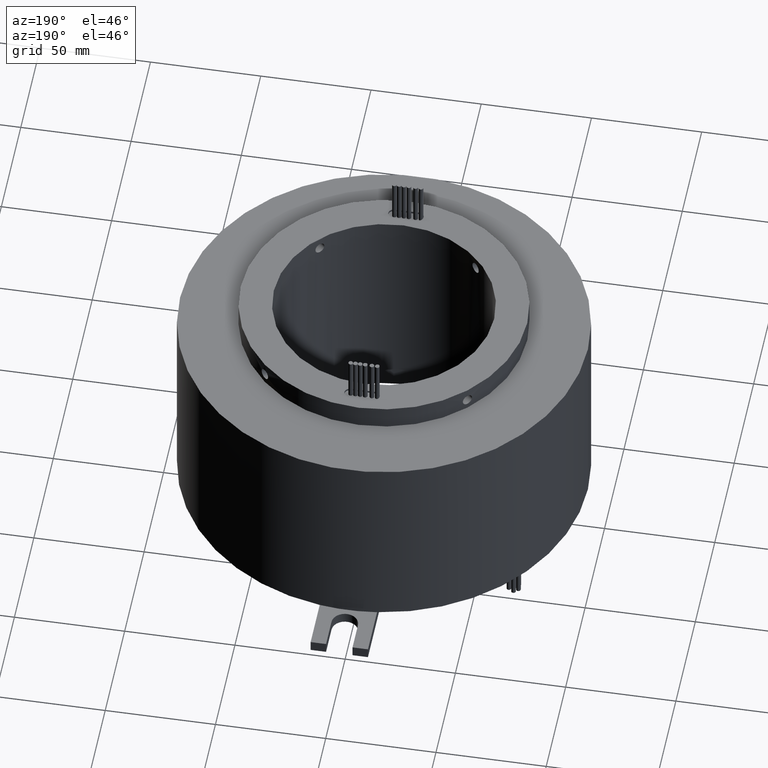
[diagram: clean part render]
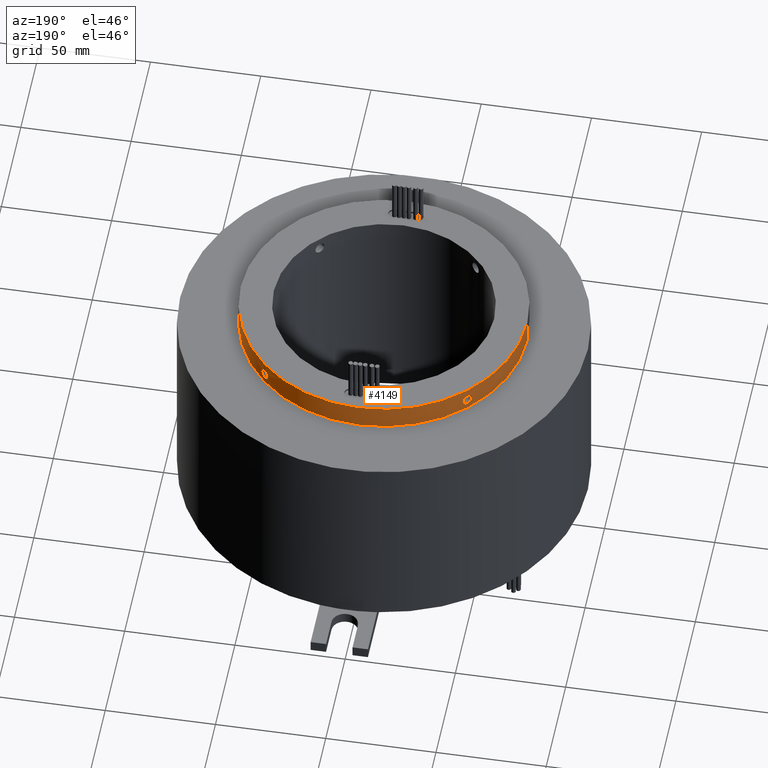
[diagram: same view with one face highlighted and labeled with its STEP entity id]
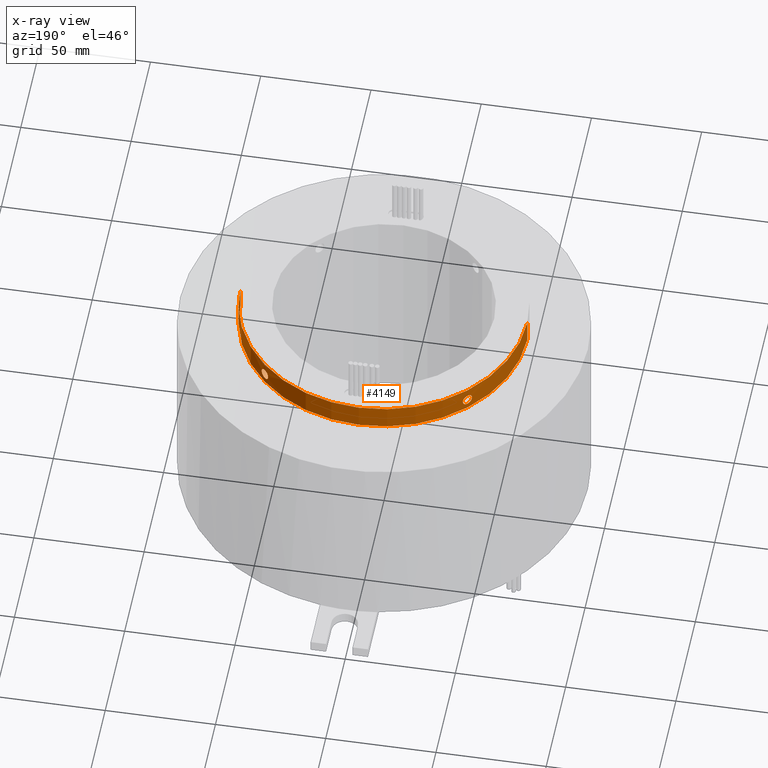
[diagram: x-ray of the same camera — body ghosted, the highlighted face saturated]
A machine part, auxiliary view. The second image highlights one B-rep face of the part: STEP entity #4149.
The next image is the same camera in x-ray: the body ghosted, the highlighted face saturated — about 0% of this face is hidden behind the body in this view.
In plain terms, the highlighted cylindrical surface (partial cylindrical patch) has radius 65 mm, axis along (-0, -0, 1).
Its self-contained STEP definition (entity closure, byte-faithful):
#104 = CARTESIAN_POINT ( 'NONE',  ( 46.07999204829227600, 45.84388199766633000, -3.500138038327434800 ) ) ;
#111 = CARTESIAN_POINT ( 'NONE',  ( -47.47069103543148600, 44.40204649447926500, -7.252360309801808600 ) ) ;
#113 = VERTEX_POINT ( 'NONE', #1805 ) ;
#116 = CARTESIAN_POINT ( 'NONE',  ( 44.20897853959981200, 47.65062269902254100, -5.341538258810599500 ) ) ;
#122 = CARTESIAN_POINT ( 'NONE',  ( -45.50124398056639300, 46.41834232062086600, -8.419956692820902000 ) ) ;
#140 = CARTESIAN_POINT ( 'NONE',  ( -44.16016572421846600, 47.69569963015072000, -6.163171243454490500 ) ) ;
#179 = DIRECTION ( 'NONE',  ( -0.0000000000000000000, -0.0000000000000000000, 1.000000000000000000 ) ) ;
#181 = CARTESIAN_POINT ( 'NONE',  ( -65.00000000000000000, 7.960204194457797300E-015, 0.0000000000000000000 ) ) ;
#210 = CARTESIAN_POINT ( 'NONE',  ( -45.50102671124737700, 46.41855338487375300, -3.580161844710348300 ) ) ;
#228 = CARTESIAN_POINT ( 'NONE',  ( -47.46956576708286900, 44.40325080319352200, -4.744693392472177300 ) ) ;
#235 = B_SPLINE_CURVE_WITH_KNOTS ( 'NONE', 3,
 ( #3615, #1668, #2831, #496, #3225, #881, #3633, #1298, #4033, #1682, #4439, #2073, #4829, #2461, #104, #2851, #508, #3241, #906, #3648, #1311, #4050, #1704, #4452, #2084, #4851, #2475, #116, #2869, #530 ),
 .UNSPECIFIED., .F., .F.,
 ( 4, 2, 2, 2, 2, 2, 2, 2, 2, 2, 2, 2, 2, 2, 4 ),
 ( 0.007816862583405146200, 0.008305305601618804100, 0.008793748619832461900, 0.009770634656259769000, 0.01025907767447342300, 0.01074752069268707600, 0.01123596371090072700, 0.01172440672911438000, 0.01221284974732803200, 0.01270129276554168500, 0.01318973578375533600, 0.01367817880196899000, 0.01416662182018264300, 0.01465506483839629600, 0.01563195087482360800 ),
 .UNSPECIFIED. ) ;
#299 = CARTESIAN_POINT ( 'NONE',  ( 44.17207540943285000, 47.68468060354278700, -6.327630498714695400 ) ) ;
#316 = CARTESIAN_POINT ( 'NONE',  ( 45.73084434046003800, 46.19216296432736600, -8.484082171939674000 ) ) ;
#333 = CARTESIAN_POINT ( 'NONE',  ( 47.52335674216848100, 44.34562555328687900, -7.108106359963710700 ) ) ;
#370 = DIRECTION ( 'NONE',  ( 1.000000000000000000, 0.0000000000000000000, 0.0000000000000000000 ) ) ;
#376 = VERTEX_POINT ( 'NONE', #4385 ) ;
#411 = CARTESIAN_POINT ( 'NONE',  ( -65.00000000000000000, 7.960204194457797300E-015, 43.85958022877165500 ) ) ;
#496 = CARTESIAN_POINT ( 'NONE',  ( 47.64146030417070000, 44.21868703357350900, -5.352470072581452200 ) ) ;
#508 = CARTESIAN_POINT ( 'NONE',  ( 45.73107917413582900, 46.19192476950722400, -3.515985911344599000 ) ) ;
#521 = CARTESIAN_POINT ( 'NONE',  ( -47.27406240823314900, 44.61139246279392300, -7.652783468253103300 ) ) ;
#530 = CARTESIAN_POINT ( 'NONE',  ( 44.16016572421815300, 47.69569963015104000, -6.000000000000000000 ) ) ;
#545 = CARTESIAN_POINT ( 'NONE',  ( -45.17259827340448900, 46.73819934398493800, -8.247504164300817600 ) ) ;
#619 = CARTESIAN_POINT ( 'NONE',  ( -45.84388199766648600, 46.07999204829209800, -3.500138038327434300 ) ) ;
#632 = CARTESIAN_POINT ( 'NONE',  ( -47.65062269902269800, 44.20897853959964900, -5.341538258810601300 ) ) ;
#681 = CARTESIAN_POINT ( 'NONE',  ( 44.16016572421815300, 47.69569963015104000, -6.000000000000000000 ) ) ;
#694 = CARTESIAN_POINT ( 'NONE',  ( 44.25395825891427400, 47.60872947220727300, -6.805985060338418400 ) ) ;
#719 = CARTESIAN_POINT ( 'NONE',  ( 46.07662570307977000, 45.84725899677446400, -8.500057831212194200 ) ) ;
#735 = CARTESIAN_POINT ( 'NONE',  ( 47.64110329690681300, 44.21907166762397900, -6.649252969355587500 ) ) ;
#759 = EDGE_LOOP ( 'NONE', ( #2209, #2008 ) ) ;
#857 = CARTESIAN_POINT ( 'NONE',  ( 44.16016572421815300, 47.69569963015104000, -6.000000000000000000 ) ) ;
#881 = CARTESIAN_POINT ( 'NONE',  ( 47.48141422801675300, 44.39066146716344000, -4.743159703425783700 ) ) ;
#901 = VERTEX_POINT ( 'NONE', #857 ) ;
#906 = CARTESIAN_POINT ( 'NONE',  ( 45.39017267962743300, 46.52692994251630400, -3.627068785985135600 ) ) ;
#917 = CARTESIAN_POINT ( 'NONE',  ( -47.02857776554562000, 44.87016334702067900, -7.986869438697850900 ) ) ;
#930 = CARTESIAN_POINT ( 'NONE',  ( -44.87151147613803900, 47.02728798534189300, -7.988178730515181200 ) ) ;
#986 = CARTESIAN_POINT ( 'NONE',  ( 65.00000000000000000, 0.0000000000000000000, 43.85958022877165500 ) ) ;
#994 = CARTESIAN_POINT ( 'NONE',  ( -44.21868703357369400, 47.64146030417053600, -5.352470072581454000 ) ) ;
#1003 = DIRECTION ( 'NONE',  ( 1.000000000000000000, 0.0000000000000000000, 0.0000000000000000000 ) ) ;
#1010 = CARTESIAN_POINT ( 'NONE',  ( -46.19192476950740200, 45.73107917413567200, -3.515985911344600400 ) ) ;
#1028 = DIRECTION ( 'NONE',  ( -0.0000000000000000000, -0.0000000000000000000, 1.000000000000000000 ) ) ;
#1033 = CARTESIAN_POINT ( 'NONE',  ( -47.69569963015118900, 44.16016572421798300, -6.000000000000000000 ) ) ;
#1099 = CARTESIAN_POINT ( 'NONE',  ( 44.40204649447942100, 47.47069103543132900, -7.252360309801807700 ) ) ;
#1115 = CARTESIAN_POINT ( 'NONE',  ( 46.41834232062102900, 45.50124398056621500, -8.419956692820900200 ) ) ;
#1129 = CARTESIAN_POINT ( 'NONE',  ( 47.69569963015087000, 44.16016572421829500, -6.163171243454490500 ) ) ;
#1183 = EDGE_CURVE ( 'NONE', #4394, #113, #2065, .T. ) ;
#1298 = CARTESIAN_POINT ( 'NONE',  ( 47.11658312939154300, 44.77768266964981300, -4.118157253113183800 ) ) ;
#1311 = CARTESIAN_POINT ( 'NONE',  ( 45.06919407177638000, 46.83787144319425300, -3.829163464615563700 ) ) ;
#1319 = CARTESIAN_POINT ( 'NONE',  ( -46.73843357647932400, 45.17235284750622500, -8.247267377098694400 ) ) ;
#1339 = CARTESIAN_POINT ( 'NONE',  ( -44.61045786286954500, 47.27494773534495900, -7.651509095637674600 ) ) ;
#1344 = VECTOR ( 'NONE', #1967, 1000.000000000000000 ) ;
#1404 = CARTESIAN_POINT ( 'NONE',  ( -44.39066146716359600, 47.48141422801660400, -4.743159703425786400 ) ) ;
#1411 = CARTESIAN_POINT ( 'NONE',  ( 65.00000000000000000, 0.0000000000000000000, 0.0000000000000000000 ) ) ;
#1425 = CARTESIAN_POINT ( 'NONE',  ( -46.52692994251646000, 45.39017267962727000, -3.627068785985138300 ) ) ;
#1433 = EDGE_CURVE ( 'NONE', #4394, #1915, #1585, .T. ) ;
#1502 = CARTESIAN_POINT ( 'NONE',  ( 44.61139246279407900, 47.27406240823298600, -7.652783468253099700 ) ) ;
#1516 = CARTESIAN_POINT ( 'NONE',  ( 46.73819934398508700, 45.17259827340431900, -8.247504164300819300 ) ) ;
#1585 = LINE ( 'NONE', #986, #4348 ) ;
#1610 = VERTEX_POINT ( 'NONE', #2268 ) ;
#1668 = CARTESIAN_POINT ( 'NONE',  ( 47.69569963015089800, 44.16016572421831700, -5.836865793582640000 ) ) ;
#1682 = CARTESIAN_POINT ( 'NONE',  ( 46.83989344400823300, 45.06709290814459500, -3.830825397124022900 ) ) ;
#1695 = CARTESIAN_POINT ( 'NONE',  ( -47.69569963015120400, 44.16016572421799000, -6.165197205766059300 ) ) ;
#1703 = B_SPLINE_CURVE_WITH_KNOTS ( 'NONE', 3,
 ( #2940, #4525, #3331, #994, #3737, #1404, #4133, #1795, #4547, #2171, #4937, #2567, #210, #2950, #619, #3355, #1010, #3750, #1425, #4157, #1807, #4559, #2194, #4953, #2581, #228, #2974, #632, #3370, #1033 ),
 .UNSPECIFIED., .F., .F.,
 ( 4, 2, 2, 2, 2, 2, 2, 2, 2, 2, 2, 2, 2, 2, 4 ),
 ( 0.007816862583405142700, 0.008305305601618795400, 0.008793748619832449800, 0.009770634656259758600, 0.01025907767447341300, 0.01074752069268706600, 0.01123596371090072000, 0.01172440672911437300, 0.01221284974732802700, 0.01270129276554168200, 0.01318973578375533600, 0.01367817880196899000, 0.01416662182018264500, 0.01465506483839629900, 0.01563195087482360100 ),
 .UNSPECIFIED. ) ;
#1704 = CARTESIAN_POINT ( 'NONE',  ( 44.77970713791242500, 47.11465979961361200, -4.115691267181317900 ) ) ;
#1719 = CARTESIAN_POINT ( 'NONE',  ( -46.41866997379251800, 45.50091341147444300, -8.419903535158653100 ) ) ;
#1724 = DIRECTION ( 'NONE',  ( -0.0000000000000000000, -0.0000000000000000000, 1.000000000000000000 ) ) ;
#1730 = CARTESIAN_POINT ( 'NONE',  ( -44.40285866452262600, 47.46993096935391800, -7.254216696553063700 ) ) ;
#1795 = CARTESIAN_POINT ( 'NONE',  ( -44.77768266964999100, 47.11658312939140100, -4.118157253113184700 ) ) ;
#1805 = CARTESIAN_POINT ( 'NONE',  ( -65.00000000000000000, 7.960204194457797300E-015, -11.00000000000000400 ) ) ;
#1807 = CARTESIAN_POINT ( 'NONE',  ( -46.83787144319442300, 45.06919407177622400, -3.829163464615566300 ) ) ;
#1842 = EDGE_CURVE ( 'NONE', #1610, #376, #4610, .T. ) ;
#1889 = CARTESIAN_POINT ( 'NONE',  ( 44.87016334702084200, 47.02857776554546400, -7.986869438697849200 ) ) ;
#1905 = CARTESIAN_POINT ( 'NONE',  ( 47.02728798534203500, 44.87151147613787600, -7.988178730515183000 ) ) ;
#1915 = VERTEX_POINT ( 'NONE', #1411 ) ;
#1967 = DIRECTION ( 'NONE',  ( -0.0000000000000000000, -0.0000000000000000000, 1.000000000000000000 ) ) ;
#2008 = ORIENTED_EDGE ( 'NONE', *, *, #2880, .T. ) ;
#2065 = CIRCLE ( 'NONE', #4364, 65.00000000000000000 ) ;
#2073 = CARTESIAN_POINT ( 'NONE',  ( 46.52968309448228700, 45.38734890897493600, -3.628434735116882000 ) ) ;
#2076 = EDGE_LOOP ( 'NONE', ( #2920, #4470 ) ) ;
#2082 = CARTESIAN_POINT ( 'NONE',  ( -47.64145854052023300, 44.21868879071839600, -6.647196251884907700 ) ) ;
#2084 = CARTESIAN_POINT ( 'NONE',  ( 44.53659027965484500, 47.34448734825273400, -4.471996258555806000 ) ) ;
#2095 = CARTESIAN_POINT ( 'NONE',  ( -46.07787977465136500, 45.84599861680192100, -8.499941852664465000 ) ) ;
#2108 = CARTESIAN_POINT ( 'NONE',  ( -44.25373741433745100, 47.60893473517981500, -6.805116717310282200 ) ) ;
#2167 = EDGE_CURVE ( 'NONE', #113, #4113, #4351, .T. ) ;
#2170 = FACE_BOUND ( 'NONE', #759, .T. ) ;
#2171 = CARTESIAN_POINT ( 'NONE',  ( -45.06709290814479400, 46.83989344400807700, -3.830825397124018900 ) ) ;
#2194 = CARTESIAN_POINT ( 'NONE',  ( -47.11465979961380400, 44.77970713791228300, -4.115691267181322400 ) ) ;
#2209 = ORIENTED_EDGE ( 'NONE', *, *, #1842, .T. ) ;
#2268 = CARTESIAN_POINT ( 'NONE',  ( -47.69569963015118900, 44.16016572421798300, -6.000000000000000000 ) ) ;
#2271 = CARTESIAN_POINT ( 'NONE',  ( 45.17235284750638200, 46.73843357647917400, -8.247267377098694400 ) ) ;
#2282 = CARTESIAN_POINT ( 'NONE',  ( 47.27494773534508700, 44.61045786286935300, -7.651509095637676300 ) ) ;
#2381 = B_SPLINE_CURVE_WITH_KNOTS ( 'NONE', 3,
 ( #681, #5019, #299, #3032, #694, #3438, #1099, #3834, #1502, #4244, #1889, #4643, #2271, #5042, #2666, #316, #3052, #719, #3450, #1115, #3862, #1516, #4259, #1905, #4666, #2282, #5055, #2690, #333, #3070, #735, #3471, #1129, #3877 ),
 .UNSPECIFIED., .F., .F.,
 ( 4, 2, 2, 2, 2, 2, 2, 2, 2, 2, 2, 2, 2, 2, 2, 2, 4 ),
 ( 0.0000000000000000000, 0.0004885539114628212000, 0.0009771078229256424100, 0.001465661734388463500, 0.001954215645851284800, 0.002442769557314105900, 0.002931323468776927000, 0.003419877380239748500, 0.003908431291702569600, 0.004396985203165391600, 0.004885539114628211800, 0.005374093026091032900, 0.005862646937553854000, 0.006351200849016676800, 0.006839754760479500500, 0.007328308671942322500, 0.007816862583405146200 ),
 .UNSPECIFIED. ) ;
#2461 = CARTESIAN_POINT ( 'NONE',  ( 46.19429463686460500, 45.72868545152557100, -3.516424283524280300 ) ) ;
#2468 = CARTESIAN_POINT ( 'NONE',  ( -47.52313167126844500, 44.34586677126545600, -7.108760903830897400 ) ) ;
#2475 = CARTESIAN_POINT ( 'NONE',  ( 44.34619579791038300, 47.52282425354419400, -4.890485192260708700 ) ) ;
#2488 = CARTESIAN_POINT ( 'NONE',  ( -45.72968957284814500, 46.19330253558751300, -8.483798822003155500 ) ) ;
#2507 = CARTESIAN_POINT ( 'NONE',  ( -44.17217664217794500, 47.68458695621927700, -6.328886830125398400 ) ) ;
#2546 = CARTESIAN_POINT ( 'NONE',  ( 47.69569963015087700, 44.16016572421829500, -6.000000000000000000 ) ) ;
#2567 = CARTESIAN_POINT ( 'NONE',  ( -45.38734890897511300, 46.52968309448212400, -3.628434735116883300 ) ) ;
#2581 = CARTESIAN_POINT ( 'NONE',  ( -47.34448734825289100, 44.53659027965467500, -4.471996258555806000 ) ) ;
#2666 = CARTESIAN_POINT ( 'NONE',  ( 45.50091341147459200, 46.41866997379236200, -8.419903535158653100 ) ) ;
#2690 = CARTESIAN_POINT ( 'NONE',  ( 47.46993096935408100, 44.40285866452246200, -7.254216696553060100 ) ) ;
#2713 = DIRECTION ( 'NONE',  ( -0.0000000000000000000, -0.0000000000000000000, 1.000000000000000000 ) ) ;
#2765 = EDGE_LOOP ( 'NONE', ( #4745, #3139, #4332, #4061 ) ) ;
#2831 = CARTESIAN_POINT ( 'NONE',  ( 47.68495195705850900, 44.17178261899801600, -5.674724672138033600 ) ) ;
#2851 = CARTESIAN_POINT ( 'NONE',  ( 45.84683095845083800, 46.07705800996701800, -3.499863692156795400 ) ) ;
#2864 = CARTESIAN_POINT ( 'NONE',  ( -47.34648643170536500, 44.53446376517442900, -7.524126066433772100 ) ) ;
#2869 = CARTESIAN_POINT ( 'NONE',  ( 44.16016572421816000, 47.69569963015104000, -5.669680582258623100 ) ) ;
#2876 = CARTESIAN_POINT ( 'NONE',  ( -45.38979120847884000, 46.52730130513864300, -8.372733384653560800 ) ) ;
#2880 = EDGE_CURVE ( 'NONE', #376, #1610, #1703, .T. ) ;
#2890 = CARTESIAN_POINT ( 'NONE',  ( -44.16016572421847300, 47.69569963015073500, -6.000000000000000000 ) ) ;
#2920 = ORIENTED_EDGE ( 'NONE', *, *, #4546, .T. ) ;
#2940 = CARTESIAN_POINT ( 'NONE',  ( -44.16016572421847300, 47.69569963015073500, -6.000000000000000000 ) ) ;
#2950 = CARTESIAN_POINT ( 'NONE',  ( -45.72868545152572800, 46.19429463686444800, -3.516424283524279400 ) ) ;
#2974 = CARTESIAN_POINT ( 'NONE',  ( -47.52282425354432900, 44.34619579791021200, -4.890485192260708700 ) ) ;
#3032 = CARTESIAN_POINT ( 'NONE',  ( 44.21868879071855900, 47.64145854052008400, -6.647196251884908600 ) ) ;
#3052 = CARTESIAN_POINT ( 'NONE',  ( 45.84599861680208500, 46.07787977465120800, -8.499941852664465000 ) ) ;
#3070 = CARTESIAN_POINT ( 'NONE',  ( 47.60893473517997200, 44.25373741433728000, -6.805116717310282200 ) ) ;
#3139 = ORIENTED_EDGE ( 'NONE', *, *, #2167, .T. ) ;
#3201 = FACE_OUTER_BOUND ( 'NONE', #2765, .T. ) ;
#3225 = CARTESIAN_POINT ( 'NONE',  ( 47.60878172976979500, 44.25390132918614900, -5.194459988422059000 ) ) ;
#3241 = CARTESIAN_POINT ( 'NONE',  ( 45.50349364552904100, 46.41613493597020600, -3.579244278842626900 ) ) ;
#3253 = CARTESIAN_POINT ( 'NONE',  ( -47.11537871908345900, 44.77895043660901600, -7.883387971855511500 ) ) ;
#3267 = CARTESIAN_POINT ( 'NONE',  ( -45.06717314572365000, 46.83981492344771200, -8.169196027846336200 ) ) ;
#3331 = CARTESIAN_POINT ( 'NONE',  ( -44.17178261899818600, 47.68495195705835200, -5.674724672138033600 ) ) ;
#3355 = CARTESIAN_POINT ( 'NONE',  ( -46.07705800996720300, 45.84683095845068100, -3.499863692156796700 ) ) ;
#3370 = CARTESIAN_POINT ( 'NONE',  ( -47.69569963015118900, 44.16016572421798300, -5.669680582258624900 ) ) ;
#3438 = CARTESIAN_POINT ( 'NONE',  ( 44.34586677126564100, 47.52313167126830300, -7.108760903830901900 ) ) ;
#3450 = CARTESIAN_POINT ( 'NONE',  ( 46.19330253558765500, 45.72968957284799500, -8.483798822003157300 ) ) ;
#3471 = CARTESIAN_POINT ( 'NONE',  ( 47.68458695621944800, 44.17217664217777400, -6.328886830125400200 ) ) ;
#3482 = VERTEX_POINT ( 'NONE', #2546 ) ;
#3615 = CARTESIAN_POINT ( 'NONE',  ( 47.69569963015087700, 44.16016572421829500, -6.000000000000000000 ) ) ;
#3633 = CARTESIAN_POINT ( 'NONE',  ( 47.35421800087097200, 44.52674613911143800, -4.464115677310887000 ) ) ;
#3640 = CARTESIAN_POINT ( 'NONE',  ( -47.69569963015118900, 44.16016572421798300, -6.000000000000000000 ) ) ;
#3648 = CARTESIAN_POINT ( 'NONE',  ( 45.17263462782830900, 46.73816498904236700, -3.752452797410053400 ) ) ;
#3649 = CIRCLE ( 'NONE', #4314, 65.00000000000000000 ) ;
#3662 = CARTESIAN_POINT ( 'NONE',  ( -46.83943914677563900, 45.06756733898327400, -8.169622482335317000 ) ) ;
#3679 = CARTESIAN_POINT ( 'NONE',  ( -44.78001768319927600, 47.11436777042448700, -7.884844892390866300 ) ) ;
#3737 = CARTESIAN_POINT ( 'NONE',  ( -44.25390132918632700, 47.60878172976961800, -5.194459988422059900 ) ) ;
#3746 = CARTESIAN_POINT ( 'NONE',  ( 0.0000000000000000000, 0.0000000000000000000, 43.85958022877165500 ) ) ;
#3750 = CARTESIAN_POINT ( 'NONE',  ( -46.41613493597034800, 45.50349364552887700, -3.579244278842627700 ) ) ;
#3834 = CARTESIAN_POINT ( 'NONE',  ( 44.53446376517459300, 47.34648643170520200, -7.524126066433772100 ) ) ;
#3862 = CARTESIAN_POINT ( 'NONE',  ( 46.52730130513880600, 45.38979120847867000, -8.372733384653559000 ) ) ;
#3877 = CARTESIAN_POINT ( 'NONE',  ( 47.69569963015087700, 44.16016572421829500, -6.000000000000000000 ) ) ;
#4033 = CARTESIAN_POINT ( 'NONE',  ( 47.02799500030456400, 44.87077185973861000, -4.012558557178437900 ) ) ;
#4050 = CARTESIAN_POINT ( 'NONE',  ( 44.87301683620178500, 47.02585263051150100, -4.010203501155904100 ) ) ;
#4057 = CARTESIAN_POINT ( 'NONE',  ( -46.52882177019859000, 45.38822952748508800, -8.371927435005803300 ) ) ;
#4061 = ORIENTED_EDGE ( 'NONE', *, *, #1433, .F. ) ;
#4063 = CARTESIAN_POINT ( 'NONE',  ( 0.0000000000000000000, 0.0000000000000000000, 0.0000000000000000000 ) ) ;
#4070 = CARTESIAN_POINT ( 'NONE',  ( -44.53498090570879200, 47.34599961501450600, -7.524995964391646200 ) ) ;
#4102 = CARTESIAN_POINT ( 'NONE',  ( 65.00000000000000000, 0.0000000000000000000, -11.00000000000000400 ) ) ;
#4113 = VERTEX_POINT ( 'NONE', #181 ) ;
#4133 = CARTESIAN_POINT ( 'NONE',  ( -44.52674613911160900, 47.35421800087083700, -4.464115677310887900 ) ) ;
#4143 = FACE_BOUND ( 'NONE', #2076, .T. ) ;
#4149 = ADVANCED_FACE ( 'NONE', ( #4143, #2170, #3201 ), #5076, .T. ) ;
#4157 = CARTESIAN_POINT ( 'NONE',  ( -46.73816498904251700, 45.17263462782813800, -3.752452797410054800 ) ) ;
#4244 = CARTESIAN_POINT ( 'NONE',  ( 44.77895043660916500, 47.11537871908331000, -7.883387971855508000 ) ) ;
#4259 = CARTESIAN_POINT ( 'NONE',  ( 46.83981492344786100, 45.06717314572349400, -8.169196027846338000 ) ) ;
#4277 = EDGE_CURVE ( 'NONE', #3482, #901, #235, .T. ) ;
#4287 = EDGE_CURVE ( 'NONE', #1915, #4113, #3649, .T. ) ;
#4314 = AXIS2_PLACEMENT_3D ( 'NONE', #4063, #1724, #4473 ) ;
#4332 = ORIENTED_EDGE ( 'NONE', *, *, #4287, .F. ) ;
#4348 = VECTOR ( 'NONE', #179, 1000.000000000000000 ) ;
#4351 = LINE ( 'NONE', #411, #1344 ) ;
#4364 = AXIS2_PLACEMENT_3D ( 'NONE', #5081, #2713, #370 ) ;
#4385 = CARTESIAN_POINT ( 'NONE',  ( -44.16016572421847300, 47.69569963015073500, -6.000000000000000000 ) ) ;
#4394 = VERTEX_POINT ( 'NONE', #4102 ) ;
#4439 = CARTESIAN_POINT ( 'NONE',  ( 46.74028108513634500, 45.17044358804135800, -3.753983388831083600 ) ) ;
#4449 = CARTESIAN_POINT ( 'NONE',  ( -47.68468060354293700, 44.17207540943267900, -6.327630498714695400 ) ) ;
#4452 = CARTESIAN_POINT ( 'NONE',  ( 44.61199204706570500, 47.27349685588199400, -4.346271653779442800 ) ) ;
#4464 = CARTESIAN_POINT ( 'NONE',  ( -46.19216296432750800, 45.73084434045988900, -8.484082171939674000 ) ) ;
#4470 = ORIENTED_EDGE ( 'NONE', *, *, #4277, .T. ) ;
#4473 = DIRECTION ( 'NONE',  ( 1.000000000000000000, 0.0000000000000000000, 0.0000000000000000000 ) ) ;
#4486 = CARTESIAN_POINT ( 'NONE',  ( -44.34562555328704300, 47.52335674216832500, -7.108106359963710700 ) ) ;
#4525 = CARTESIAN_POINT ( 'NONE',  ( -44.16016572421849400, 47.69569963015073500, -5.836865793582638200 ) ) ;
#4546 = EDGE_CURVE ( 'NONE', #901, #3482, #2381, .T. ) ;
#4547 = CARTESIAN_POINT ( 'NONE',  ( -44.87077185973878800, 47.02799500030440800, -4.012558557178432600 ) ) ;
#4559 = CARTESIAN_POINT ( 'NONE',  ( -47.02585263051167200, 44.87301683620162900, -4.010203501155908500 ) ) ;
#4610 = B_SPLINE_CURVE_WITH_KNOTS ( 'NONE', 3,
 ( #3640, #1695, #4449, #2082, #4841, #2468, #111, #2864, #521, #3253, #917, #3662, #1319, #4057, #1719, #4464, #2095, #4860, #2488, #122, #2876, #545, #3267, #930, #3679, #1339, #4070, #1730, #4486, #2108, #4876, #2507, #140, #2890 ),
 .UNSPECIFIED., .F., .F.,
 ( 4, 2, 2, 2, 2, 2, 2, 2, 2, 2, 2, 2, 2, 2, 2, 2, 4 ),
 ( 0.0000000000000000000, 0.0004885539114628209900, 0.0009771078229256419700, 0.001465661734388462800, 0.001954215645851283900, 0.002442769557314105000, 0.002931323468776925700, 0.003419877380239746800, 0.003908431291702567900, 0.004396985203165389000, 0.004885539114628210100, 0.005374093026091030300, 0.005862646937553851400, 0.006351200849016674200, 0.006839754760479497100, 0.007328308671942319900, 0.007816862583405142700 ),
 .UNSPECIFIED. ) ;
#4643 = CARTESIAN_POINT ( 'NONE',  ( 45.06756733898343700, 46.83943914677548300, -8.169622482335313400 ) ) ;
#4666 = CARTESIAN_POINT ( 'NONE',  ( 47.11436777042462900, 44.78001768319910500, -7.884844892390866300 ) ) ;
#4706 = AXIS2_PLACEMENT_3D ( 'NONE', #3746, #1028, #1003 ) ;
#4745 = ORIENTED_EDGE ( 'NONE', *, *, #1183, .T. ) ;
#4829 = CARTESIAN_POINT ( 'NONE',  ( 46.41855338487391700, 45.50102671124721400, -3.580161844710348300 ) ) ;
#4841 = CARTESIAN_POINT ( 'NONE',  ( -47.60872947220742200, 44.25395825891411100, -6.805985060338418400 ) ) ;
#4851 = CARTESIAN_POINT ( 'NONE',  ( 44.40325080319369300, 47.46956576708270600, -4.744693392472175500 ) ) ;
#4860 = CARTESIAN_POINT ( 'NONE',  ( -45.84725899677462700, 46.07662570307960700, -8.500057831212195900 ) ) ;
#4876 = CARTESIAN_POINT ( 'NONE',  ( -44.21907166762414200, 47.64110329690665700, -6.649252969355587500 ) ) ;
#4937 = CARTESIAN_POINT ( 'NONE',  ( -45.17044358804151500, 46.74028108513618200, -3.753983388831085400 ) ) ;
#4953 = CARTESIAN_POINT ( 'NONE',  ( -47.27349685588215800, 44.61199204706552000, -4.346271653779446400 ) ) ;
#5019 = CARTESIAN_POINT ( 'NONE',  ( 44.16016572421816700, 47.69569963015104700, -6.165197205766059300 ) ) ;
#5042 = CARTESIAN_POINT ( 'NONE',  ( 45.38822952748523700, 46.52882177019842700, -8.371927435005805100 ) ) ;
#5055 = CARTESIAN_POINT ( 'NONE',  ( 47.34599961501465500, 44.53498090570862900, -7.524995964391645300 ) ) ;
#5076 = CYLINDRICAL_SURFACE ( 'NONE', #4706, 65.00000000000000000 ) ;
#5081 = CARTESIAN_POINT ( 'NONE',  ( 0.0000000000000000000, 0.0000000000000000000, -11.00000000000000400 ) ) ;